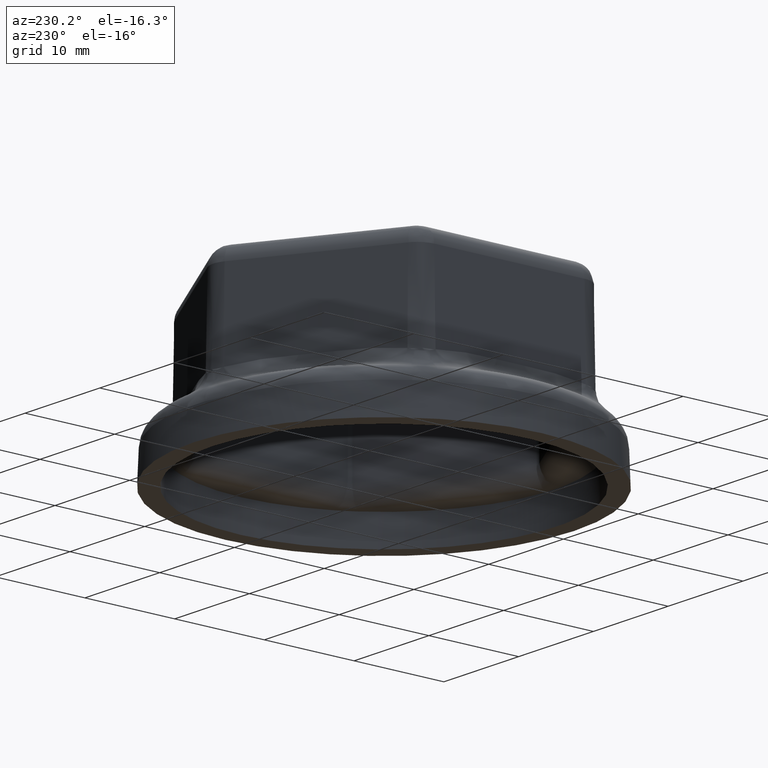
[diagram: clean part render]
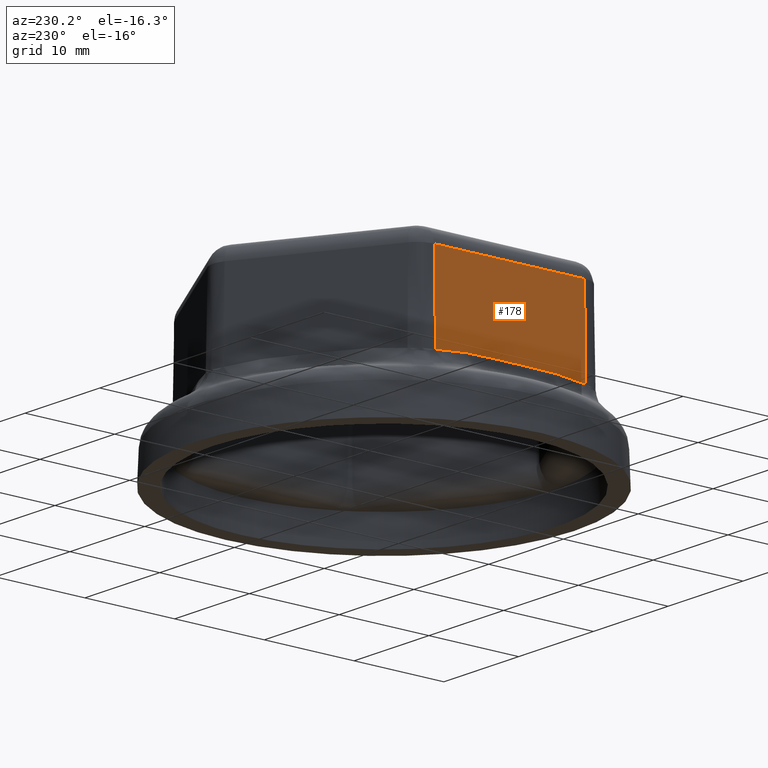
[diagram: same view with one face highlighted and labeled with its STEP entity id]
A machine part, auxiliary view. The second image highlights one B-rep face of the part: STEP entity #178.
In plain terms, the highlighted planar face has unit normal (-0.9998, -0, 0.0175).
Its self-contained STEP definition (entity closure, byte-faithful):
#178 = ADVANCED_FACE( '', ( #410 ), #411, .T. );
#410 = FACE_OUTER_BOUND( '', #3561, .T. );
#411 = PLANE( '', #3562 );
#3561 = EDGE_LOOP( '', ( #5041, #5042, #5043, #5044, #5045, #5046 ) );
#3562 = AXIS2_PLACEMENT_3D( '', #5047, #5048, #5049 );
#5041 = ORIENTED_EDGE( '', *, *, #5455, .T. );
#5042 = ORIENTED_EDGE( '', *, *, #5433, .T. );
#5043 = ORIENTED_EDGE( '', *, *, #5400, .F. );
#5044 = ORIENTED_EDGE( '', *, *, #5412, .T. );
#5045 = ORIENTED_EDGE( '', *, *, #5393, .T. );
#5046 = ORIENTED_EDGE( '', *, *, #5456, .T. );
#5047 = CARTESIAN_POINT( '', ( -17.0000000000000, -8.37162286987078, 3.30000000000000 ) );
#5048 = DIRECTION( '', ( -0.999847695156391, -5.55026966140510E-017, 0.0174524064372835 ) );
#5049 = DIRECTION( '', ( 0.0174524064372835, 0.000000000000000, 0.999847695156391 ) );
#5393 = EDGE_CURVE( '', #5824, #5822, #5825, .T. );
#5400 = EDGE_CURVE( '', #5834, #5814, #5836, .T. );
#5412 = EDGE_CURVE( '', #5834, #5824, #5856, .T. );
#5433 = EDGE_CURVE( '', #5887, #5814, #5888, .T. );
#5455 = EDGE_CURVE( '', #5914, #5887, #5915, .F. );
#5456 = EDGE_CURVE( '', #5822, #5914, #5916, .T. );
#5814 = VERTEX_POINT( '', #7281 );
#5822 = VERTEX_POINT( '', #7342 );
#5824 = VERTEX_POINT( '', #7358 );
#5825 = LINE( '', #7359, #7360 );
#5834 = VERTEX_POINT( '', #7424 );
#5836 = LINE( '', #7465, #7466 );
#5856 = LINE( '', #7554, #7555 );
#5887 = VERTEX_POINT( '', #7736 );
#5888 = B_SPLINE_CURVE_WITH_KNOTS( '', 3, ( #7737, #7738, #7739, #7740, #7741, #7742, #7743, #7744, #7745, #7746, #7747, #7748, #7749, #7750, #7751, #7752 ), .UNSPECIFIED., .F., .F., ( 4, 1, 1, 1, 2, 2, 2, 1, 1, 1, 4 ), ( 0.000000000000000, 0.000848882048033098, 0.00169776409606620, 0.00254664614409929, 0.00339552819213239, 0.00424441024016549, 0.00509329228819859, 0.00551773331221514, 0.00594217433623168, 0.00636661536024823, 0.00679105638426478 ), .UNSPECIFIED. );
#5914 = VERTEX_POINT( '', #7901 );
#5915 = LINE( '', #7902, #7903 );
#5916 = B_SPLINE_CURVE_WITH_KNOTS( '', 3, ( #7904, #7905, #7906, #7907, #7908, #7909, #7910, #7911, #7912, #7913, #7914, #7915, #7916, #7917, #7918, #7919 ), .UNSPECIFIED., .F., .F., ( 4, 1, 1, 1, 2, 2, 2, 1, 1, 1, 4 ), ( 0.000000000000000, 0.000424441024044877, 0.000848882048089753, 0.00127332307213463, 0.00169776409617951, 0.00254664614426926, 0.00339552819235902, 0.00424441024044877, 0.00509329228853853, 0.00594217433662828, 0.00679105638471804 ), .UNSPECIFIED. );
#7281 = CARTESIAN_POINT( '', ( -16.9374727513906, -8.37162286942172, 6.88218367371171 ) );
#7342 = CARTESIAN_POINT( '', ( -16.9374727513448, 8.37162286987081, 6.88218367633447 ) );
#7358 = CARTESIAN_POINT( '', ( -16.7724748901581, 8.37162286987081, 16.3349048128744 ) );
#7359 = CARTESIAN_POINT( '', ( -17.0000000000000, 8.37162286987081, 3.30000000000000 ) );
#7360 = VECTOR( '', #8308, 1000.00000000000 );
#7424 = CARTESIAN_POINT( '', ( -16.7724748901581, -8.37162286823675, 16.3349048128745 ) );
#7465 = CARTESIAN_POINT( '', ( -17.0000000000000, -8.37162286987077, 3.30000000000000 ) );
#7466 = VECTOR( '', #8314, 1000.00000000000 );
#7554 = CARTESIAN_POINT( '', ( -16.7724748901581, -8.37162286987069, 16.3349048128746 ) );
#7555 = VECTOR( '', #8331, 1000.00000000000 );
#7736 = CARTESIAN_POINT( '', ( -16.9307890060622, -1.59137354385983, 7.26509518712543 ) );
#7737 = CARTESIAN_POINT( '', ( -16.9307890060622, -1.59137354385983, 7.26509518712543 ) );
#7738 = CARTESIAN_POINT( '', ( -16.9307890060622, -1.87478523837522, 7.26509518712543 ) );
#7739 = CARTESIAN_POINT( '', ( -16.9307958785288, -2.44158638528338, 7.26470146377469 ) );
#7740 = CARTESIAN_POINT( '', ( -16.9308710917910, -3.29157804784494, 7.26039249887212 ) );
#7741 = CARTESIAN_POINT( '', ( -16.9310727058135, -4.14116062566966, 7.24884203925594 ) );
#7742 = CARTESIAN_POINT( '', ( -16.9313432783615, -4.70710833088949, 7.23334094836517 ) );
#7743 = CARTESIAN_POINT( '', ( -16.9317133290500, -5.27273408401946, 7.21214075861564 ) );
#7744 = CARTESIAN_POINT( '', ( -16.9319480655135, -5.55538607500083, 7.19869271563069 ) );
#7745 = CARTESIAN_POINT( '', ( -16.9325542891132, -6.12024747566266, 7.16396218886560 ) );
#7746 = CARTESIAN_POINT( '', ( -16.9329257097287, -6.40245710063131, 7.14268351605210 ) );
#7747 = CARTESIAN_POINT( '', ( -16.9336187783072, -6.82533158804207, 7.10297764378543 ) );
#7748 = CARTESIAN_POINT( '', ( -16.9341262612488, -7.10710085948208, 7.07390396553042 ) );
#7749 = CARTESIAN_POINT( '', ( -16.9350432227005, -7.52925073766694, 7.02137127914350 ) );
#7750 = CARTESIAN_POINT( '', ( -16.9361376597789, -7.95082623188631, 6.95867102091852 ) );
#7751 = CARTESIAN_POINT( '', ( -16.9370020789165, -8.23144031130594, 6.90914848169273 ) );
#7752 = CARTESIAN_POINT( '', ( -16.9374727513433, -8.37162286942172, 6.88218367642086 ) );
#7901 = CARTESIAN_POINT( '', ( -16.9307890060622, 1.59137354385982, 7.26509518712543 ) );
#7902 = CARTESIAN_POINT( '', ( -16.9307890060622, -8.37162286962006, 7.26509518712543 ) );
#7903 = VECTOR( '', #8392, 1000.00000000000 );
#7904 = CARTESIAN_POINT( '', ( -16.9374727513448, 8.37162286987081, 6.88218367633447 ) );
#7905 = CARTESIAN_POINT( '', ( -16.9370020789179, 8.23144031174611, 6.90914848161283 ) );
#7906 = CARTESIAN_POINT( '', ( -16.9361376597801, 7.95082623230853, 6.95867102085037 ) );
#7907 = CARTESIAN_POINT( '', ( -16.9350432227015, 7.52925073806196, 7.02137127908998 ) );
#7908 = CARTESIAN_POINT( '', ( -16.9341262612495, 7.10710085984967, 7.07390396548896 ) );
#7909 = CARTESIAN_POINT( '', ( -16.9336187783078, 6.82533158839123, 7.10297764375054 ) );
#7910 = CARTESIAN_POINT( '', ( -16.9329257097292, 6.40245710095274, 7.14268351602613 ) );
#7911 = CARTESIAN_POINT( '', ( -16.9325542891135, 6.12024747596549, 7.16396218884433 ) );
#7912 = CARTESIAN_POINT( '', ( -16.9319480655137, 5.55538607526628, 7.19869271561702 ) );
#7913 = CARTESIAN_POINT( '', ( -16.9317133290502, 5.27273408426613, 7.21214075860485 ) );
#7914 = CARTESIAN_POINT( '', ( -16.9313432783616, 4.70710833109850, 7.23334094835888 ) );
#7915 = CARTESIAN_POINT( '', ( -16.9310727001065, 4.14116064431132, 7.24884236621126 ) );
#7916 = CARTESIAN_POINT( '', ( -16.9308710981051, 3.29157802752416, 7.26039213713656 ) );
#7917 = CARTESIAN_POINT( '', ( -16.9307958894698, 2.44158634993103, 7.26470083696624 ) );
#7918 = CARTESIAN_POINT( '', ( -16.9307890060622, 1.87478523839427, 7.26509518712543 ) );
#7919 = CARTESIAN_POINT( '', ( -16.9307890060622, 1.59137354385982, 7.26509518712543 ) );
#8308 = DIRECTION( '', ( -0.0174524064372835, -9.68803173089429E-019, -0.999847695156391 ) );
#8314 = DIRECTION( '', ( -0.0174524064372836, -1.25338913050749E-010, -0.999847695156391 ) );
#8331 = DIRECTION( '', ( -1.69591152042014E-016, 1.00000000000000, -6.53563886928525E-015 ) );
#8392 = DIRECTION( '', ( -5.55111512312578E-017, 1.00000000000000, 0.000000000000000 ) );